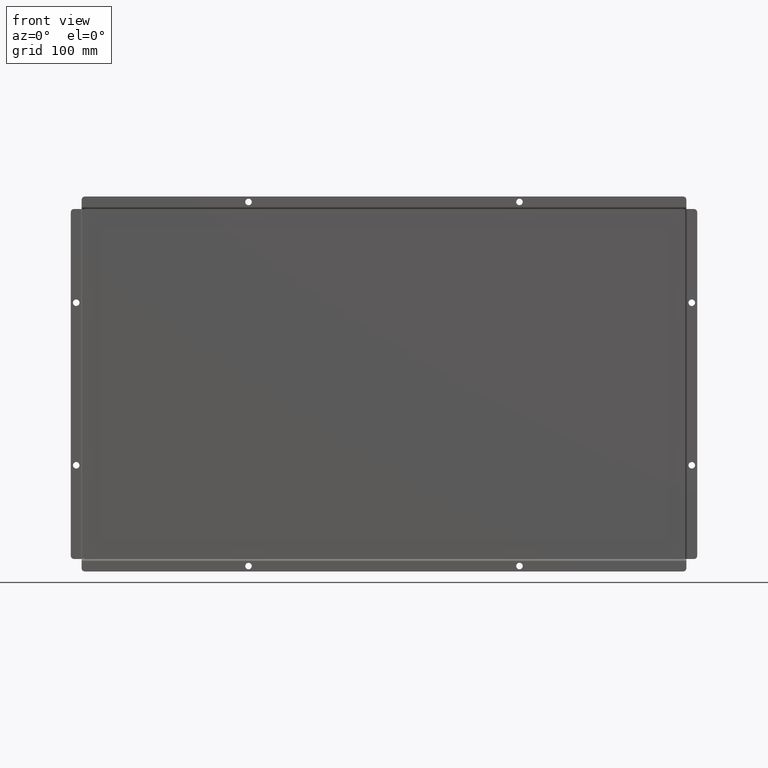
[diagram: clean part render]
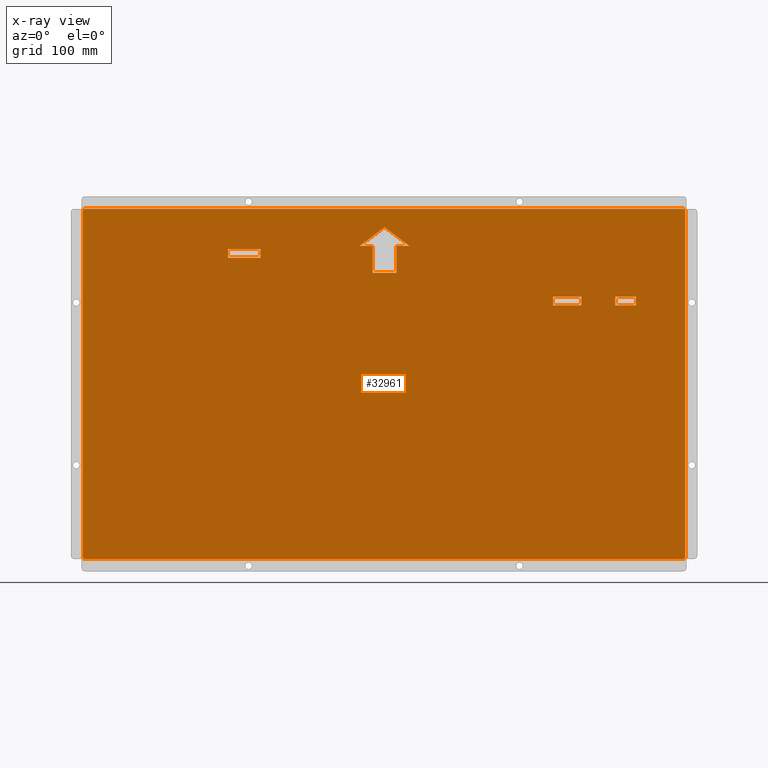
[diagram: x-ray — body ghosted, one internal face saturated and labeled with its STEP entity id]
A machine part, front view, then the same camera in x-ray: the body is ghosted and one INTERNAL B-rep face — a face not visible from any outside direction — is saturated and labeled: STEP entity #32961.
In plain terms, the highlighted planar face has unit normal (0, -1, 0).
Its self-contained STEP definition (entity closure, byte-faithful):
#1268=FACE_BOUND('',#3432,.T.);
#1269=FACE_BOUND('',#3433,.T.);
#1270=FACE_BOUND('',#3434,.T.);
#1271=FACE_BOUND('',#3435,.T.);
#1558=FACE_OUTER_BOUND('',#3431,.T.);
#3431=EDGE_LOOP('',(#21138,#21139,#21140,#21141,#21142,#21143,#21144,#21145));
#3432=EDGE_LOOP('',(#21146,#21147,#21148,#21149));
#3433=EDGE_LOOP('',(#21150,#21151,#21152,#21153));
#3434=EDGE_LOOP('',(#21154,#21155,#21156,#21157));
#3435=EDGE_LOOP('',(#21158,#21159,#21160,#21161,#21162,#21163,#21164));
#5594=LINE('',#47712,#8747);
#5595=LINE('',#47716,#8748);
#5596=LINE('',#47720,#8749);
#5597=LINE('',#47723,#8750);
#5598=LINE('',#47726,#8751);
#5599=LINE('',#47728,#8752);
#5600=LINE('',#47730,#8753);
#5601=LINE('',#47731,#8754);
#5602=LINE('',#47734,#8755);
#5603=LINE('',#47736,#8756);
#5604=LINE('',#47738,#8757);
#5605=LINE('',#47739,#8758);
#5606=LINE('',#47742,#8759);
#5607=LINE('',#47744,#8760);
#5608=LINE('',#47746,#8761);
#5609=LINE('',#47747,#8762);
#5610=LINE('',#47750,#8763);
#5611=LINE('',#47752,#8764);
#5612=LINE('',#47754,#8765);
#5613=LINE('',#47756,#8766);
#5614=LINE('',#47758,#8767);
#5615=LINE('',#47760,#8768);
#5616=LINE('',#47761,#8769);
#8747=VECTOR('',#38386,10.);
#8748=VECTOR('',#38389,10.);
#8749=VECTOR('',#38392,10.);
#8750=VECTOR('',#38395,10.);
#8751=VECTOR('',#38396,10.);
#8752=VECTOR('',#38397,10.);
#8753=VECTOR('',#38398,10.);
#8754=VECTOR('',#38399,10.);
#8755=VECTOR('',#38400,10.);
#8756=VECTOR('',#38401,10.);
#8757=VECTOR('',#38402,10.);
#8758=VECTOR('',#38403,10.);
#8759=VECTOR('',#38404,10.);
#8760=VECTOR('',#38405,10.);
#8761=VECTOR('',#38406,10.);
#8762=VECTOR('',#38407,10.);
#8763=VECTOR('',#38408,10.);
#8764=VECTOR('',#38409,10.);
#8765=VECTOR('',#38410,10.);
#8766=VECTOR('',#38411,10.);
#8767=VECTOR('',#38412,10.);
#8768=VECTOR('',#38413,10.);
#8769=VECTOR('',#38414,10.);
#11900=CIRCLE('',#35294,2.);
#11901=CIRCLE('',#35295,2.);
#11902=CIRCLE('',#35296,2.);
#11903=CIRCLE('',#35297,2.);
#13211=VERTEX_POINT('',#47708);
#13212=VERTEX_POINT('',#47709);
#13213=VERTEX_POINT('',#47711);
#13214=VERTEX_POINT('',#47713);
#13215=VERTEX_POINT('',#47715);
#13216=VERTEX_POINT('',#47717);
#13217=VERTEX_POINT('',#47719);
#13218=VERTEX_POINT('',#47721);
#13219=VERTEX_POINT('',#47724);
#13220=VERTEX_POINT('',#47725);
#13221=VERTEX_POINT('',#47727);
#13222=VERTEX_POINT('',#47729);
#13223=VERTEX_POINT('',#47732);
#13224=VERTEX_POINT('',#47733);
#13225=VERTEX_POINT('',#47735);
#13226=VERTEX_POINT('',#47737);
#13227=VERTEX_POINT('',#47740);
#13228=VERTEX_POINT('',#47741);
#13229=VERTEX_POINT('',#47743);
#13230=VERTEX_POINT('',#47745);
#13231=VERTEX_POINT('',#47748);
#13232=VERTEX_POINT('',#47749);
#13233=VERTEX_POINT('',#47751);
#13234=VERTEX_POINT('',#47753);
#13235=VERTEX_POINT('',#47755);
#13236=VERTEX_POINT('',#47757);
#13237=VERTEX_POINT('',#47759);
#16381=EDGE_CURVE('',#13211,#13212,#11900,.T.);
#16382=EDGE_CURVE('',#13211,#13213,#5594,.T.);
#16383=EDGE_CURVE('',#13214,#13213,#11901,.T.);
#16384=EDGE_CURVE('',#13214,#13215,#5595,.T.);
#16385=EDGE_CURVE('',#13216,#13215,#11902,.T.);
#16386=EDGE_CURVE('',#13216,#13217,#5596,.T.);
#16387=EDGE_CURVE('',#13218,#13217,#11903,.T.);
#16388=EDGE_CURVE('',#13218,#13212,#5597,.T.);
#16389=EDGE_CURVE('',#13219,#13220,#5598,.T.);
#16390=EDGE_CURVE('',#13220,#13221,#5599,.T.);
#16391=EDGE_CURVE('',#13221,#13222,#5600,.T.);
#16392=EDGE_CURVE('',#13222,#13219,#5601,.T.);
#16393=EDGE_CURVE('',#13223,#13224,#5602,.T.);
#16394=EDGE_CURVE('',#13224,#13225,#5603,.T.);
#16395=EDGE_CURVE('',#13225,#13226,#5604,.T.);
#16396=EDGE_CURVE('',#13226,#13223,#5605,.T.);
#16397=EDGE_CURVE('',#13227,#13228,#5606,.T.);
#16398=EDGE_CURVE('',#13228,#13229,#5607,.T.);
#16399=EDGE_CURVE('',#13229,#13230,#5608,.T.);
#16400=EDGE_CURVE('',#13230,#13227,#5609,.T.);
#16401=EDGE_CURVE('',#13231,#13232,#5610,.T.);
#16402=EDGE_CURVE('',#13233,#13231,#5611,.T.);
#16403=EDGE_CURVE('',#13234,#13233,#5612,.T.);
#16404=EDGE_CURVE('',#13235,#13234,#5613,.T.);
#16405=EDGE_CURVE('',#13236,#13235,#5614,.T.);
#16406=EDGE_CURVE('',#13237,#13236,#5615,.T.);
#16407=EDGE_CURVE('',#13232,#13237,#5616,.T.);
#21138=ORIENTED_EDGE('',*,*,#16381,.F.);
#21139=ORIENTED_EDGE('',*,*,#16382,.T.);
#21140=ORIENTED_EDGE('',*,*,#16383,.F.);
#21141=ORIENTED_EDGE('',*,*,#16384,.T.);
#21142=ORIENTED_EDGE('',*,*,#16385,.F.);
#21143=ORIENTED_EDGE('',*,*,#16386,.T.);
#21144=ORIENTED_EDGE('',*,*,#16387,.F.);
#21145=ORIENTED_EDGE('',*,*,#16388,.T.);
#21146=ORIENTED_EDGE('',*,*,#16389,.T.);
#21147=ORIENTED_EDGE('',*,*,#16390,.T.);
#21148=ORIENTED_EDGE('',*,*,#16391,.T.);
#21149=ORIENTED_EDGE('',*,*,#16392,.T.);
#21150=ORIENTED_EDGE('',*,*,#16393,.T.);
#21151=ORIENTED_EDGE('',*,*,#16394,.T.);
#21152=ORIENTED_EDGE('',*,*,#16395,.T.);
#21153=ORIENTED_EDGE('',*,*,#16396,.T.);
#21154=ORIENTED_EDGE('',*,*,#16397,.T.);
#21155=ORIENTED_EDGE('',*,*,#16398,.T.);
#21156=ORIENTED_EDGE('',*,*,#16399,.T.);
#21157=ORIENTED_EDGE('',*,*,#16400,.T.);
#21158=ORIENTED_EDGE('',*,*,#16401,.F.);
#21159=ORIENTED_EDGE('',*,*,#16402,.F.);
#21160=ORIENTED_EDGE('',*,*,#16403,.F.);
#21161=ORIENTED_EDGE('',*,*,#16404,.F.);
#21162=ORIENTED_EDGE('',*,*,#16405,.F.);
#21163=ORIENTED_EDGE('',*,*,#16406,.F.);
#21164=ORIENTED_EDGE('',*,*,#16407,.F.);
#30652=PLANE('',#35293);
#32961=ADVANCED_FACE('',(#1558,#1268,#1269,#1270,#1271),#30652,.F.);
#35293=AXIS2_PLACEMENT_3D('',#47707,#38382,#38383);
#35294=AXIS2_PLACEMENT_3D('',#47710,#38384,#38385);
#35295=AXIS2_PLACEMENT_3D('',#47714,#38387,#38388);
#35296=AXIS2_PLACEMENT_3D('',#47718,#38390,#38391);
#35297=AXIS2_PLACEMENT_3D('',#47722,#38393,#38394);
#38382=DIRECTION('center_axis',(0.,0.,1.));
#38383=DIRECTION('ref_axis',(1.,0.,0.));
#38384=DIRECTION('center_axis',(0.,0.,1.));
#38385=DIRECTION('ref_axis',(-0.707106781186548,0.707106781186548,0.));
#38386=DIRECTION('',(1.,2.55590912143921E-16,0.));
#38387=DIRECTION('center_axis',(0.,0.,1.));
#38388=DIRECTION('ref_axis',(0.707106781186541,0.707106781186554,0.));
#38389=DIRECTION('',(1.09923071745065E-16,-1.,0.));
#38390=DIRECTION('center_axis',(0.,0.,1.));
#38391=DIRECTION('ref_axis',(0.707106781186548,-0.707106781186548,0.));
#38392=DIRECTION('',(-1.,-1.2779545607196E-16,0.));
#38393=DIRECTION('center_axis',(0.,0.,1.));
#38394=DIRECTION('ref_axis',(-0.707106781186541,-0.707106781186554,0.));
#38395=DIRECTION('',(2.1984614349013E-16,1.,0.));
#38396=DIRECTION('',(-1.,0.,0.));
#38397=DIRECTION('',(4.44089209850062E-15,-1.,0.));
#38398=DIRECTION('',(1.,0.,0.));
#38399=DIRECTION('',(4.44089209850062E-15,1.,0.));
#38400=DIRECTION('',(0.,1.,0.));
#38401=DIRECTION('',(-1.,0.,0.));
#38402=DIRECTION('',(0.,-1.,0.));
#38403=DIRECTION('',(1.,0.,0.));
#38404=DIRECTION('',(-4.44089209850063E-15,-1.,0.));
#38405=DIRECTION('',(1.,0.,0.));
#38406=DIRECTION('',(-4.44089209850063E-15,1.,0.));
#38407=DIRECTION('',(-1.,0.,0.));
#38408=DIRECTION('',(-1.,-1.47269152834825E-15,0.));
#38409=DIRECTION('',(0.797877174599344,-0.602820051303346,0.));
#38410=DIRECTION('',(0.797877174599343,0.602820051303347,0.));
#38411=DIRECTION('',(-1.,0.,0.));
#38412=DIRECTION('',(0.,1.,0.));
#38413=DIRECTION('',(-1.,0.,0.));
#38414=DIRECTION('',(-1.79474202984319E-16,-1.,0.));
#47707=CARTESIAN_POINT('Origin',(2.90941065597857E-14,-6.33604987302E-15,
0.));
#47708=CARTESIAN_POINT('',(-276.,161.6,0.));
#47709=CARTESIAN_POINT('',(-278.,159.6,0.));
#47710=CARTESIAN_POINT('Origin',(-276.,159.6,0.));
#47711=CARTESIAN_POINT('',(276.,161.6,0.));
#47712=CARTESIAN_POINT('',(-278.,161.6,0.));
#47713=CARTESIAN_POINT('',(278.,159.6,0.));
#47714=CARTESIAN_POINT('Origin',(276.,159.6,0.));
#47715=CARTESIAN_POINT('',(278.,-159.6,0.));
#47716=CARTESIAN_POINT('',(278.,161.6,0.));
#47717=CARTESIAN_POINT('',(276.,-161.6,0.));
#47718=CARTESIAN_POINT('Origin',(276.,-159.6,0.));
#47719=CARTESIAN_POINT('',(-276.,-161.6,0.));
#47720=CARTESIAN_POINT('',(278.,-161.6,0.));
#47721=CARTESIAN_POINT('',(-278.,-159.6,0.));
#47722=CARTESIAN_POINT('Origin',(-276.,-159.6,0.));
#47723=CARTESIAN_POINT('',(-278.,-161.6,0.));
#47724=CARTESIAN_POINT('',(182.,80.6,0.));
#47725=CARTESIAN_POINT('',(156.,80.6,0.));
#47726=CARTESIAN_POINT('',(91.0000000000001,80.6,0.));
#47727=CARTESIAN_POINT('',(156.,72.6,0.));
#47728=CARTESIAN_POINT('',(156.,40.3000000000003,0.));
#47729=CARTESIAN_POINT('',(182.,72.6,0.));
#47730=CARTESIAN_POINT('',(78.,72.6,0.));
#47731=CARTESIAN_POINT('',(182.,36.2999999999996,0.));
#47732=CARTESIAN_POINT('',(-114.,116.4,0.));
#47733=CARTESIAN_POINT('',(-114.,124.4,0.));
#47734=CARTESIAN_POINT('',(-114.,58.2,0.));
#47735=CARTESIAN_POINT('',(-144.,124.4,0.));
#47736=CARTESIAN_POINT('',(-57.,124.4,0.));
#47737=CARTESIAN_POINT('',(-144.,116.4,0.));
#47738=CARTESIAN_POINT('',(-144.,62.2,0.));
#47739=CARTESIAN_POINT('',(-72.,116.4,0.));
#47740=CARTESIAN_POINT('',(213.4,80.6,0.));
#47741=CARTESIAN_POINT('',(213.4,72.6,0.));
#47742=CARTESIAN_POINT('',(213.4,40.2999999999995,0.));
#47743=CARTESIAN_POINT('',(232.4,72.6,0.));
#47744=CARTESIAN_POINT('',(106.7,72.6,0.));
#47745=CARTESIAN_POINT('',(232.4,80.6,0.));
#47746=CARTESIAN_POINT('',(232.4,36.3000000000005,0.));
#47747=CARTESIAN_POINT('',(116.2,80.6,0.));
#47748=CARTESIAN_POINT('',(23.4431554978284,127.322339077762,0.));
#47749=CARTESIAN_POINT('',(11.381180500304,127.322339077762,0.));
#47750=CARTESIAN_POINT('',(11.7215777489141,127.322339077762,0.));
#47751=CARTESIAN_POINT('',(0.509598940481892,144.649326464523,0.));
#47752=CARTESIAN_POINT('',(35.1338447738763,118.48967393391,6.93889390390723E-17));
#47753=CARTESIAN_POINT('',(-22.4239576168646,127.322339077762,0.));
#47754=CARTESIAN_POINT('',(-45.9058399266245,109.58107519742,-6.93889390390723E-17));
#47755=CARTESIAN_POINT('',(-10.3619826193402,127.322339077762,0.));
#47756=CARTESIAN_POINT('',(-5.1809913096701,127.322339077762,0.));
#47757=CARTESIAN_POINT('',(-10.3619826193402,102.578437031357,0.));
#47758=CARTESIAN_POINT('',(-10.3619826193402,51.2892185156783,0.));
#47759=CARTESIAN_POINT('',(11.381180500304,102.578437031357,0.));
#47760=CARTESIAN_POINT('',(5.69059025015202,102.578437031357,0.));
#47761=CARTESIAN_POINT('',(11.381180500304,63.6611695388809,0.));